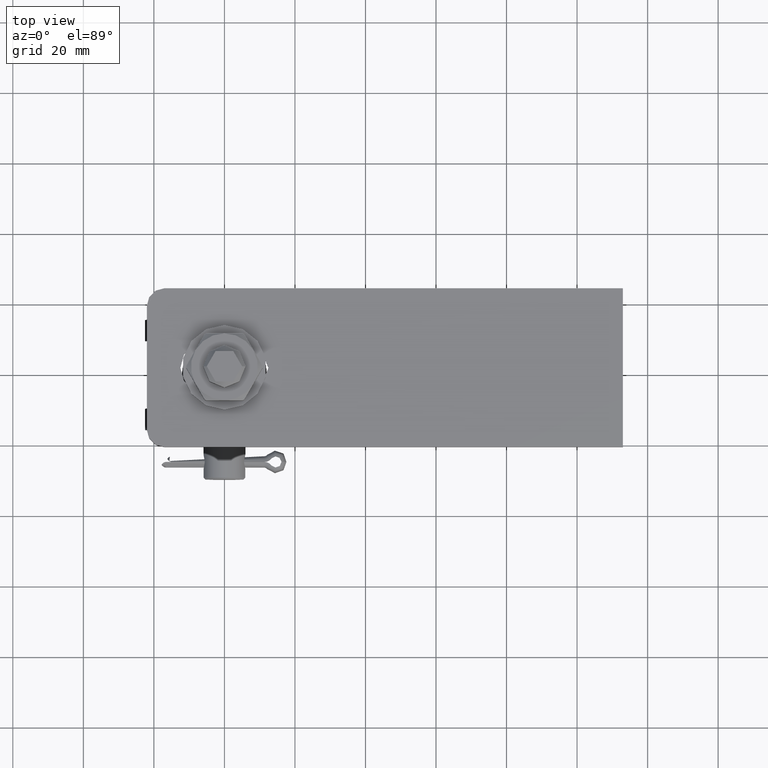
[diagram: clean part render]
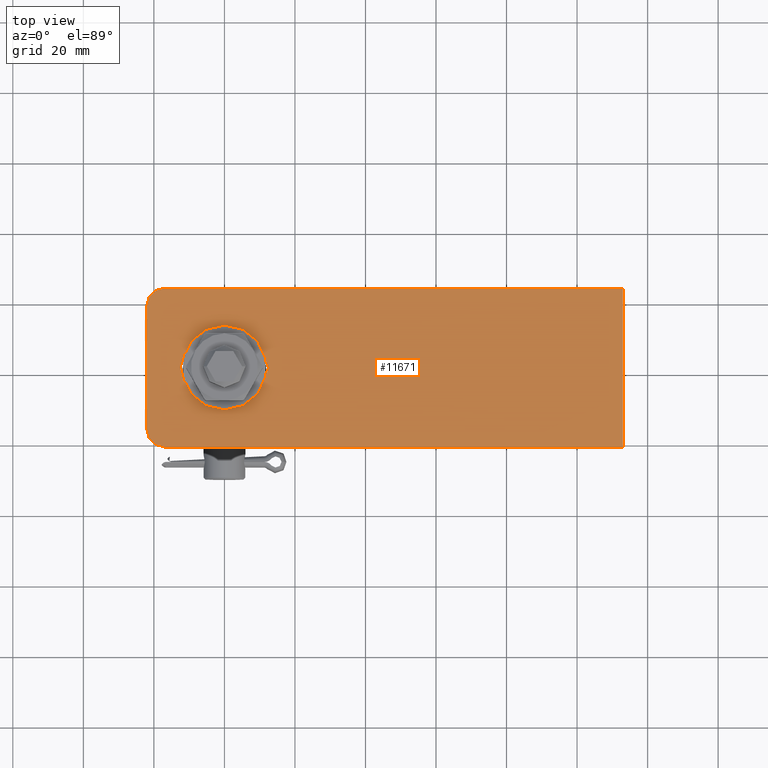
[diagram: same view with one face highlighted and labeled with its STEP entity id]
A machine part, top view. The second image highlights one B-rep face of the part: STEP entity #11671.
In plain terms, the highlighted planar face has unit normal (0, 0, 1).
Its self-contained STEP definition (entity closure, byte-faithful):
#10 = CARTESIAN_POINT ( 'NONE',  ( -62.49999999999999289, 17.50000000000000000, 3.000000000000002665 ) ) ;
#398 = DIRECTION ( 'NONE',  ( 3.083952846180990774E-16, 1.000000000000000000, -0.000000000000000000 ) ) ;
#480 = VECTOR ( 'NONE', #9493, 1000.000000000000000 ) ;
#667 = ORIENTED_EDGE ( 'NONE', *, *, #3078, .F. ) ;
#792 = DIRECTION ( 'NONE',  ( 0.000000000000000000, 0.000000000000000000, 1.000000000000000000 ) ) ;
#1391 = DIRECTION ( 'NONE',  ( -0.000000000000000000, 0.000000000000000000, 1.000000000000000000 ) ) ;
#1474 = VECTOR ( 'NONE', #9472, 1000.000000000000000 ) ;
#1503 = CARTESIAN_POINT ( 'NONE',  ( -40.49999999999998579, 7.500000000000000000, 3.000000000000002665 ) ) ;
#1546 = LINE ( 'NONE', #1649, #480 ) ;
#1575 = VECTOR ( 'NONE', #398, 1000.000000000000000 ) ;
#1648 = CARTESIAN_POINT ( 'NONE',  ( -67.49999999999998579, 17.50000000000000000, 3.000000000000002665 ) ) ;
#1649 = CARTESIAN_POINT ( 'NONE',  ( -67.49999999999998579, 22.50000000000000000, 3.000000000000002665 ) ) ;
#1659 = AXIS2_PLACEMENT_3D ( 'NONE', #15267, #16627, #8470 ) ;
#1794 = EDGE_CURVE ( 'NONE', #4829, #2479, #14468, .T. ) ;
#1889 = VECTOR ( 'NONE', #5557, 1000.000000000000000 ) ;
#1950 = VERTEX_POINT ( 'NONE', #15591 ) ;
#2005 = CARTESIAN_POINT ( 'NONE',  ( -50.49999999999998579, 0.000000000000000000, 3.000000000000002665 ) ) ;
#2054 = ORIENTED_EDGE ( 'NONE', *, *, #16447, .F. ) ;
#2479 = VERTEX_POINT ( 'NONE', #16305 ) ;
#2815 = ORIENTED_EDGE ( 'NONE', *, *, #16413, .F. ) ;
#2845 = CARTESIAN_POINT ( 'NONE',  ( 67.50000000000000000, -22.50000000000000000, 3.000000000000002665 ) ) ;
#2915 = EDGE_CURVE ( 'NONE', #8210, #9553, #12553, .T. ) ;
#3078 = EDGE_CURVE ( 'NONE', #10834, #9138, #5088, .T. ) ;
#3201 = CARTESIAN_POINT ( 'NONE',  ( -67.49999999999998579, -17.49999999999998224, 3.000000000000002665 ) ) ;
#3308 = CARTESIAN_POINT ( 'NONE',  ( -62.49999999999999289, 22.50000000000000000, 3.000000000000002665 ) ) ;
#3547 = VERTEX_POINT ( 'NONE', #12636 ) ;
#3600 = AXIS2_PLACEMENT_3D ( 'NONE', #2005, #15090, #13935 ) ;
#3763 = LINE ( 'NONE', #3864, #6869 ) ;
#3864 = CARTESIAN_POINT ( 'NONE',  ( -67.49999999999998579, -22.50000000000000000, 3.000000000000002665 ) ) ;
#4437 = AXIS2_PLACEMENT_3D ( 'NONE', #9930, #792, #7321 ) ;
#4829 = VERTEX_POINT ( 'NONE', #2845 ) ;
#5088 = CIRCLE ( 'NONE', #4437, 7.500000000000000000 ) ;
#5184 = EDGE_CURVE ( 'NONE', #11777, #9162, #6712, .T. ) ;
#5557 = DIRECTION ( 'NONE',  ( -1.000000000000000000, -0.000000000000000000, -0.000000000000000000 ) ) ;
#5564 = CARTESIAN_POINT ( 'NONE',  ( 0.000000000000000000, 0.000000000000000000, 3.000000000000002665 ) ) ;
#6667 = DIRECTION ( 'NONE',  ( -0.000000000000000000, 0.000000000000000000, 1.000000000000000000 ) ) ;
#6712 = CIRCLE ( 'NONE', #1659, 7.500000000000000000 ) ;
#6795 = ORIENTED_EDGE ( 'NONE', *, *, #2915, .T. ) ;
#6846 = LINE ( 'NONE', #15323, #15159 ) ;
#6869 = VECTOR ( 'NONE', #10491, 1000.000000000000000 ) ;
#6907 = CARTESIAN_POINT ( 'NONE',  ( -57.99999999999998579, 0.000000000000000000, 3.000000000000002665 ) ) ;
#7075 = DIRECTION ( 'NONE',  ( 1.000000000000000000, 0.000000000000000000, 0.000000000000000000 ) ) ;
#7321 = DIRECTION ( 'NONE',  ( 1.000000000000000000, 0.000000000000000000, 0.000000000000000000 ) ) ;
#8210 = VERTEX_POINT ( 'NONE', #3308 ) ;
#8470 = DIRECTION ( 'NONE',  ( 1.000000000000000000, 0.000000000000000000, 0.000000000000000000 ) ) ;
#8590 = CIRCLE ( 'NONE', #13920, 4.999999999999997335 ) ;
#8860 = ORIENTED_EDGE ( 'NONE', *, *, #11234, .T. ) ;
#9138 = VERTEX_POINT ( 'NONE', #1503 ) ;
#9162 = VERTEX_POINT ( 'NONE', #6907 ) ;
#9381 = LINE ( 'NONE', #11031, #1889 ) ;
#9472 = DIRECTION ( 'NONE',  ( 0.000000000000000000, -1.000000000000000000, 0.000000000000000000 ) ) ;
#9493 = DIRECTION ( 'NONE',  ( -1.000000000000000000, -0.000000000000000000, -0.000000000000000000 ) ) ;
#9553 = VERTEX_POINT ( 'NONE', #1648 ) ;
#9930 = CARTESIAN_POINT ( 'NONE',  ( -40.49999999999998579, 0.000000000000000000, 3.000000000000002665 ) ) ;
#10314 = EDGE_CURVE ( 'NONE', #9553, #17185, #12091, .T. ) ;
#10447 = CIRCLE ( 'NONE', #3600, 7.500000000000000000 ) ;
#10491 = DIRECTION ( 'NONE',  ( 1.000000000000000000, 0.000000000000000000, 0.000000000000000000 ) ) ;
#10577 = DIRECTION ( 'NONE',  ( 1.000000000000000000, 0.000000000000000000, 0.000000000000000000 ) ) ;
#10787 = EDGE_LOOP ( 'NONE', ( #10832, #2054, #14385, #2815, #667 ) ) ;
#10832 = ORIENTED_EDGE ( 'NONE', *, *, #16518, .F. ) ;
#10834 = VERTEX_POINT ( 'NONE', #17092 ) ;
#10896 = EDGE_LOOP ( 'NONE', ( #15640, #12306, #8860, #15953, #16334, #6795 ) ) ;
#10920 = DIRECTION ( 'NONE',  ( 1.000000000000000000, 0.000000000000000000, 0.000000000000000000 ) ) ;
#11031 = CARTESIAN_POINT ( 'NONE',  ( -50.49999999999998579, 7.500000000000000000, 3.000000000000002665 ) ) ;
#11075 = FACE_OUTER_BOUND ( 'NONE', #10896, .T. ) ;
#11234 = EDGE_CURVE ( 'NONE', #1950, #4829, #3763, .T. ) ;
#11270 = DIRECTION ( 'NONE',  ( 1.000000000000000000, 0.000000000000000000, 0.000000000000000000 ) ) ;
#11344 = CARTESIAN_POINT ( 'NONE',  ( -50.49999999999998579, 7.500000000000000000, 3.000000000000002665 ) ) ;
#11671 = ADVANCED_FACE ( 'NONE', ( #11075, #14004 ), #14801, .T. ) ;
#11777 = VERTEX_POINT ( 'NONE', #11344 ) ;
#11942 = EDGE_CURVE ( 'NONE', #2479, #8210, #1546, .T. ) ;
#12091 = LINE ( 'NONE', #13183, #1474 ) ;
#12306 = ORIENTED_EDGE ( 'NONE', *, *, #13867, .T. ) ;
#12553 = CIRCLE ( 'NONE', #16602, 4.999999999999997335 ) ;
#12636 = CARTESIAN_POINT ( 'NONE',  ( -50.49999999999998579, -7.500000000000000000, 3.000000000000002665 ) ) ;
#12884 = CARTESIAN_POINT ( 'NONE',  ( 67.50000000000001421, 22.50000000000000000, 3.000000000000002665 ) ) ;
#13183 = CARTESIAN_POINT ( 'NONE',  ( -67.49999999999998579, 22.50000000000000000, 3.000000000000002665 ) ) ;
#13545 = AXIS2_PLACEMENT_3D ( 'NONE', #5564, #1391, #10920 ) ;
#13654 = CARTESIAN_POINT ( 'NONE',  ( -62.49999999999999289, -17.49999999999999645, 3.000000000000002665 ) ) ;
#13867 = EDGE_CURVE ( 'NONE', #17185, #1950, #8590, .T. ) ;
#13920 = AXIS2_PLACEMENT_3D ( 'NONE', #13654, #16274, #7075 ) ;
#13935 = DIRECTION ( 'NONE',  ( 1.000000000000000000, 0.000000000000000000, 0.000000000000000000 ) ) ;
#14004 = FACE_BOUND ( 'NONE', #10787, .T. ) ;
#14385 = ORIENTED_EDGE ( 'NONE', *, *, #5184, .F. ) ;
#14468 = LINE ( 'NONE', #12884, #1575 ) ;
#14801 = PLANE ( 'NONE',  #13545 ) ;
#15090 = DIRECTION ( 'NONE',  ( 0.000000000000000000, 0.000000000000000000, 1.000000000000000000 ) ) ;
#15159 = VECTOR ( 'NONE', #11270, 1000.000000000000000 ) ;
#15267 = CARTESIAN_POINT ( 'NONE',  ( -50.49999999999998579, 0.000000000000000000, 3.000000000000002665 ) ) ;
#15323 = CARTESIAN_POINT ( 'NONE',  ( -50.49999999999998579, -7.500000000000000000, 3.000000000000002665 ) ) ;
#15591 = CARTESIAN_POINT ( 'NONE',  ( -62.49999999999999289, -22.50000000000000000, 3.000000000000002665 ) ) ;
#15640 = ORIENTED_EDGE ( 'NONE', *, *, #10314, .T. ) ;
#15953 = ORIENTED_EDGE ( 'NONE', *, *, #1794, .T. ) ;
#16274 = DIRECTION ( 'NONE',  ( -0.000000000000000000, 0.000000000000000000, 1.000000000000000000 ) ) ;
#16305 = CARTESIAN_POINT ( 'NONE',  ( 67.50000000000001421, 22.50000000000000000, 3.000000000000002665 ) ) ;
#16334 = ORIENTED_EDGE ( 'NONE', *, *, #11942, .T. ) ;
#16413 = EDGE_CURVE ( 'NONE', #9138, #11777, #9381, .T. ) ;
#16447 = EDGE_CURVE ( 'NONE', #9162, #3547, #10447, .T. ) ;
#16518 = EDGE_CURVE ( 'NONE', #3547, #10834, #6846, .T. ) ;
#16602 = AXIS2_PLACEMENT_3D ( 'NONE', #10, #6667, #10577 ) ;
#16627 = DIRECTION ( 'NONE',  ( 0.000000000000000000, 0.000000000000000000, 1.000000000000000000 ) ) ;
#17092 = CARTESIAN_POINT ( 'NONE',  ( -40.49999999999998579, -7.500000000000000000, 3.000000000000002665 ) ) ;
#17185 = VERTEX_POINT ( 'NONE', #3201 ) ;